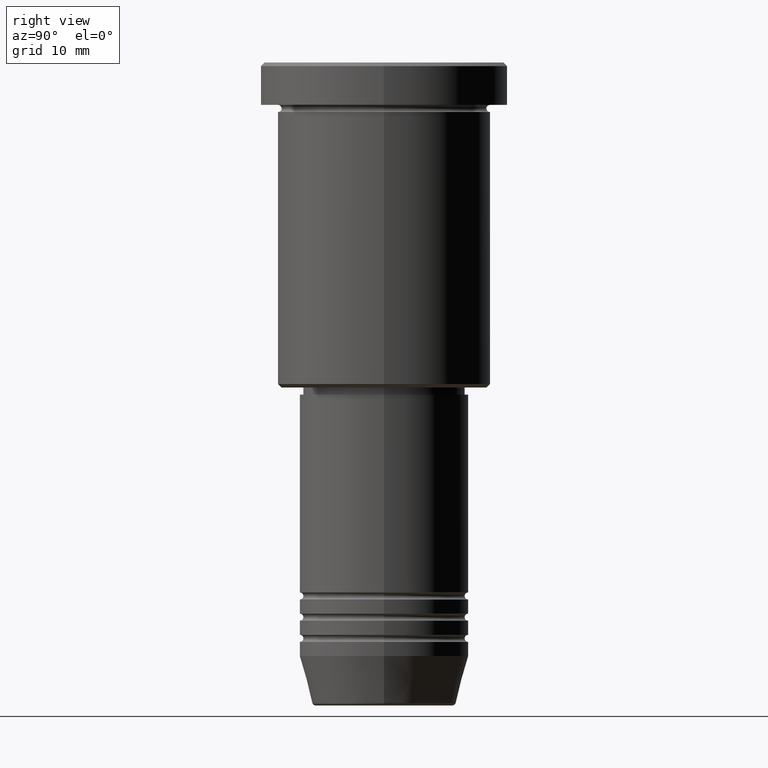
[diagram: clean part render]
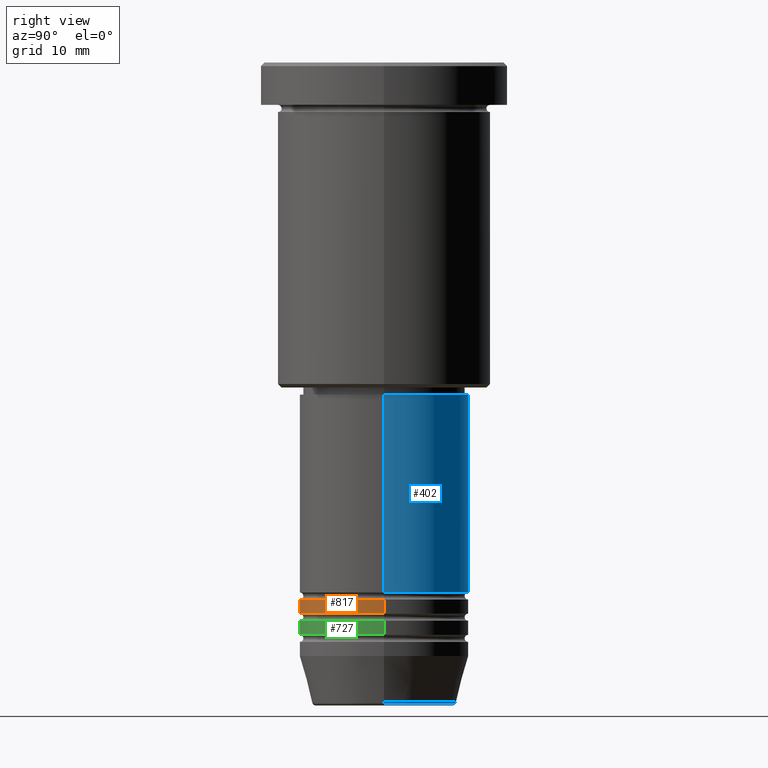
[diagram: same view with three faces highlighted in distinct colors, each labeled with its STEP entity id]
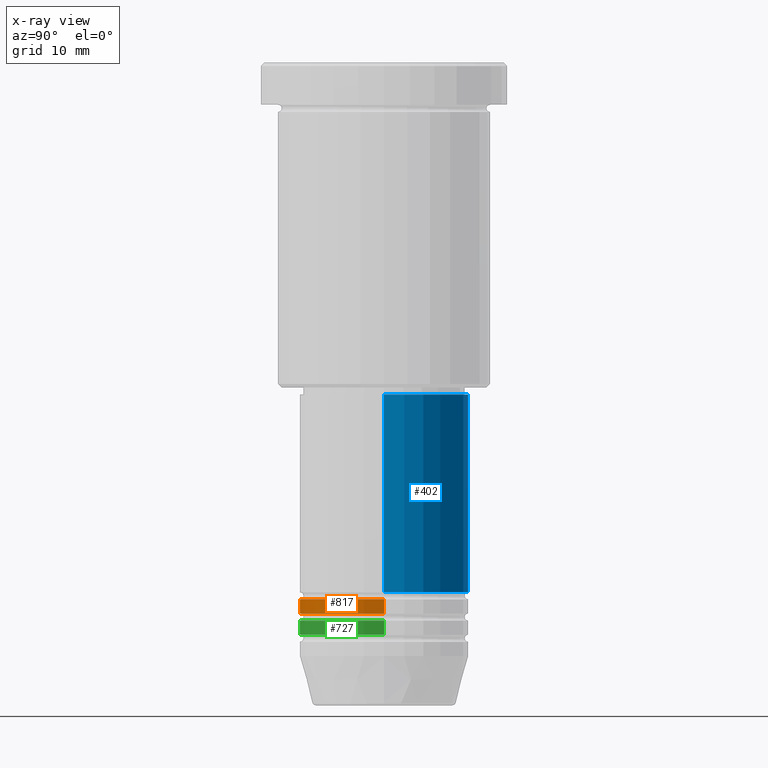
[diagram: x-ray of the same camera — body ghosted, the three highlighted faces saturated]
A machine part, right view with three faces highlighted in distinct colors.
The next image is the same camera in x-ray (body ghosted, the three faces saturated) — at least one of them is partly hidden behind the body in this view.
Their STEP definitions:

[orange] entity #817 — the highlighted cylindrical surface (partial cylindrical patch) has radius 12 mm, axis along (-0, -0, 1).
#17 = DIRECTION ( 'NONE',  ( -0.000000000000000000, -0.000000000000000000, 1.000000000000000000 ) ) ;
#22 = CARTESIAN_POINT ( 'NONE',  ( -12.00000000000000000, 1.469576158976823947E-15, 0.000000000000000000 ) ) ;
#30 = DIRECTION ( 'NONE',  ( 1.000000000000000000, 0.000000000000000000, 0.000000000000000000 ) ) ;
#74 = DIRECTION ( 'NONE',  ( -0.000000000000000000, -0.000000000000000000, 1.000000000000000000 ) ) ;
#132 = AXIS2_PLACEMENT_3D ( 'NONE', #626, #257, #236 ) ;
#173 = CIRCLE ( 'NONE', #1135, 12.00000000000000000 ) ;
#197 = CARTESIAN_POINT ( 'NONE',  ( 12.00000000000000000, 0.000000000000000000, -77.99999999999997158 ) ) ;
#236 = DIRECTION ( 'NONE',  ( 1.000000000000000000, 0.000000000000000000, 0.000000000000000000 ) ) ;
#242 = EDGE_CURVE ( 'NONE', #938, #584, #479, .T. ) ;
#257 = DIRECTION ( 'NONE',  ( -0.000000000000000000, -0.000000000000000000, 1.000000000000000000 ) ) ;
#280 = VECTOR ( 'NONE', #17, 1000.000000000000000 ) ;
#372 = CARTESIAN_POINT ( 'NONE',  ( -12.00000000000000000, 1.469576158976823947E-15, -75.99999999999997158 ) ) ;
#416 = EDGE_CURVE ( 'NONE', #666, #938, #836, .T. ) ;
#445 = DIRECTION ( 'NONE',  ( 1.000000000000000000, 0.000000000000000000, 0.000000000000000000 ) ) ;
#456 = EDGE_CURVE ( 'NONE', #609, #584, #913, .T. ) ;
#479 = CIRCLE ( 'NONE', #637, 12.00000000000000000 ) ;
#522 = EDGE_LOOP ( 'NONE', ( #866, #598, #1174, #855 ) ) ;
#553 = DIRECTION ( 'NONE',  ( -0.000000000000000000, -0.000000000000000000, 1.000000000000000000 ) ) ;
#563 = CARTESIAN_POINT ( 'NONE',  ( 12.00000000000000000, 0.000000000000000000, 0.000000000000000000 ) ) ;
#584 = VERTEX_POINT ( 'NONE', #680 ) ;
#598 = ORIENTED_EDGE ( 'NONE', *, *, #707, .T. ) ;
#609 = VERTEX_POINT ( 'NONE', #197 ) ;
#613 = CYLINDRICAL_SURFACE ( 'NONE', #132, 12.00000000000000000 ) ;
#626 = CARTESIAN_POINT ( 'NONE',  ( 0.000000000000000000, 0.000000000000000000, 0.000000000000000000 ) ) ;
#637 = AXIS2_PLACEMENT_3D ( 'NONE', #1150, #844, #30 ) ;
#666 = VERTEX_POINT ( 'NONE', #929 ) ;
#680 = CARTESIAN_POINT ( 'NONE',  ( 12.00000000000000000, 0.000000000000000000, -75.99999999999997158 ) ) ;
#707 = EDGE_CURVE ( 'NONE', #666, #609, #173, .T. ) ;
#817 = ADVANCED_FACE ( 'NONE', ( #1085 ), #613, .T. ) ;
#836 = LINE ( 'NONE', #22, #280 ) ;
#844 = DIRECTION ( 'NONE',  ( -0.000000000000000000, -0.000000000000000000, 1.000000000000000000 ) ) ;
#855 = ORIENTED_EDGE ( 'NONE', *, *, #242, .F. ) ;
#866 = ORIENTED_EDGE ( 'NONE', *, *, #416, .F. ) ;
#913 = LINE ( 'NONE', #563, #1027 ) ;
#929 = CARTESIAN_POINT ( 'NONE',  ( -12.00000000000000000, 1.469576158976823947E-15, -77.99999999999997158 ) ) ;
#938 = VERTEX_POINT ( 'NONE', #372 ) ;
#1027 = VECTOR ( 'NONE', #553, 1000.000000000000000 ) ;
#1085 = FACE_OUTER_BOUND ( 'NONE', #522, .T. ) ;
#1135 = AXIS2_PLACEMENT_3D ( 'NONE', #1162, #74, #445 ) ;
#1150 = CARTESIAN_POINT ( 'NONE',  ( 0.000000000000000000, 0.000000000000000000, -75.99999999999997158 ) ) ;
#1162 = CARTESIAN_POINT ( 'NONE',  ( 0.000000000000000000, 0.000000000000000000, -77.99999999999997158 ) ) ;
#1174 = ORIENTED_EDGE ( 'NONE', *, *, #456, .T. ) ;

[blue] entity #402 — the highlighted cylindrical surface (partial cylindrical patch) has radius 12 mm, axis along (-0, -0, 1).
#13 = CARTESIAN_POINT ( 'NONE',  ( -12.00000000000000000, 1.469576158976823947E-15, 0.000000000000000000 ) ) ;
#48 = EDGE_CURVE ( 'NONE', #960, #1116, #191, .T. ) ;
#71 = DIRECTION ( 'NONE',  ( -0.000000000000000000, -0.000000000000000000, 1.000000000000000000 ) ) ;
#77 = CIRCLE ( 'NONE', #457, 12.00000000000000000 ) ;
#93 = CARTESIAN_POINT ( 'NONE',  ( 0.000000000000000000, 0.000000000000000000, -74.99999999999997158 ) ) ;
#108 = CARTESIAN_POINT ( 'NONE',  ( 12.00000000000000000, 0.000000000000000000, 0.000000000000000000 ) ) ;
#152 = AXIS2_PLACEMENT_3D ( 'NONE', #882, #71, #340 ) ;
#191 = CIRCLE ( 'NONE', #1015, 12.00000000000000000 ) ;
#195 = DIRECTION ( 'NONE',  ( -0.000000000000000000, -0.000000000000000000, 1.000000000000000000 ) ) ;
#224 = VECTOR ( 'NONE', #195, 1000.000000000000000 ) ;
#275 = DIRECTION ( 'NONE',  ( -0.000000000000000000, -0.000000000000000000, 1.000000000000000000 ) ) ;
#327 = FACE_OUTER_BOUND ( 'NONE', #328, .T. ) ;
#328 = EDGE_LOOP ( 'NONE', ( #617, #355, #1161, #366 ) ) ;
#340 = DIRECTION ( 'NONE',  ( 1.000000000000000000, 0.000000000000000000, 0.000000000000000000 ) ) ;
#343 = VERTEX_POINT ( 'NONE', #349 ) ;
#349 = CARTESIAN_POINT ( 'NONE',  ( -12.00000000000000000, 1.469576158976823947E-15, -74.99999999999997158 ) ) ;
#355 = ORIENTED_EDGE ( 'NONE', *, *, #526, .T. ) ;
#366 = ORIENTED_EDGE ( 'NONE', *, *, #444, .F. ) ;
#402 = ADVANCED_FACE ( 'NONE', ( #327 ), #886, .T. ) ;
#444 = EDGE_CURVE ( 'NONE', #985, #960, #1006, .T. ) ;
#454 = DIRECTION ( 'NONE',  ( -0.000000000000000000, -0.000000000000000000, 1.000000000000000000 ) ) ;
#457 = AXIS2_PLACEMENT_3D ( 'NONE', #93, #454, #463 ) ;
#463 = DIRECTION ( 'NONE',  ( 1.000000000000000000, 0.000000000000000000, 0.000000000000000000 ) ) ;
#464 = CARTESIAN_POINT ( 'NONE',  ( 0.000000000000000000, 0.000000000000000000, -46.99999999999997158 ) ) ;
#511 = EDGE_CURVE ( 'NONE', #985, #343, #77, .T. ) ;
#526 = EDGE_CURVE ( 'NONE', #343, #1116, #1110, .T. ) ;
#617 = ORIENTED_EDGE ( 'NONE', *, *, #511, .T. ) ;
#728 = CARTESIAN_POINT ( 'NONE',  ( 12.00000000000000000, 0.000000000000000000, -46.99999999999997158 ) ) ;
#745 = VECTOR ( 'NONE', #833, 1000.000000000000000 ) ;
#823 = DIRECTION ( 'NONE',  ( 1.000000000000000000, 0.000000000000000000, 0.000000000000000000 ) ) ;
#832 = CARTESIAN_POINT ( 'NONE',  ( 12.00000000000000000, 0.000000000000000000, -74.99999999999997158 ) ) ;
#833 = DIRECTION ( 'NONE',  ( -0.000000000000000000, -0.000000000000000000, 1.000000000000000000 ) ) ;
#882 = CARTESIAN_POINT ( 'NONE',  ( 0.000000000000000000, 0.000000000000000000, 0.000000000000000000 ) ) ;
#886 = CYLINDRICAL_SURFACE ( 'NONE', #152, 12.00000000000000000 ) ;
#960 = VERTEX_POINT ( 'NONE', #728 ) ;
#985 = VERTEX_POINT ( 'NONE', #832 ) ;
#1006 = LINE ( 'NONE', #108, #224 ) ;
#1015 = AXIS2_PLACEMENT_3D ( 'NONE', #464, #275, #823 ) ;
#1023 = CARTESIAN_POINT ( 'NONE',  ( -12.00000000000000000, 1.469576158976823947E-15, -46.99999999999997158 ) ) ;
#1110 = LINE ( 'NONE', #13, #745 ) ;
#1116 = VERTEX_POINT ( 'NONE', #1023 ) ;
#1161 = ORIENTED_EDGE ( 'NONE', *, *, #48, .F. ) ;

[green] entity #727 — the highlighted cylindrical surface (partial cylindrical patch) has radius 12 mm, axis along (-0, -0, 1).
#2 = DIRECTION ( 'NONE',  ( 1.000000000000000000, 0.000000000000000000, 0.000000000000000000 ) ) ;
#9 = VECTOR ( 'NONE', #56, 1000.000000000000000 ) ;
#32 = CARTESIAN_POINT ( 'NONE',  ( -12.00000000000000000, 1.469576158976823947E-15, -80.99999999999997158 ) ) ;
#56 = DIRECTION ( 'NONE',  ( -0.000000000000000000, -0.000000000000000000, 1.000000000000000000 ) ) ;
#58 = VERTEX_POINT ( 'NONE', #922 ) ;
#79 = LINE ( 'NONE', #1070, #9 ) ;
#134 = VECTOR ( 'NONE', #1155, 1000.000000000000000 ) ;
#187 = DIRECTION ( 'NONE',  ( -0.000000000000000000, -0.000000000000000000, 1.000000000000000000 ) ) ;
#266 = CIRCLE ( 'NONE', #931, 12.00000000000000000 ) ;
#326 = CYLINDRICAL_SURFACE ( 'NONE', #1030, 12.00000000000000000 ) ;
#345 = AXIS2_PLACEMENT_3D ( 'NONE', #561, #543, #2 ) ;
#384 = VERTEX_POINT ( 'NONE', #529 ) ;
#413 = FACE_OUTER_BOUND ( 'NONE', #935, .T. ) ;
#529 = CARTESIAN_POINT ( 'NONE',  ( 12.00000000000000000, 0.000000000000000000, -80.99999999999997158 ) ) ;
#543 = DIRECTION ( 'NONE',  ( -0.000000000000000000, -0.000000000000000000, 1.000000000000000000 ) ) ;
#547 = DIRECTION ( 'NONE',  ( 1.000000000000000000, 0.000000000000000000, 0.000000000000000000 ) ) ;
#561 = CARTESIAN_POINT ( 'NONE',  ( 0.000000000000000000, 0.000000000000000000, -80.99999999999997158 ) ) ;
#601 = DIRECTION ( 'NONE',  ( 1.000000000000000000, 0.000000000000000000, 0.000000000000000000 ) ) ;
#639 = CARTESIAN_POINT ( 'NONE',  ( 0.000000000000000000, 0.000000000000000000, -78.99999999999997158 ) ) ;
#689 = CARTESIAN_POINT ( 'NONE',  ( 12.00000000000000000, 0.000000000000000000, 0.000000000000000000 ) ) ;
#700 = EDGE_CURVE ( 'NONE', #1127, #713, #79, .T. ) ;
#713 = VERTEX_POINT ( 'NONE', #873 ) ;
#720 = ORIENTED_EDGE ( 'NONE', *, *, #849, .F. ) ;
#727 = ADVANCED_FACE ( 'NONE', ( #413 ), #326, .T. ) ;
#795 = ORIENTED_EDGE ( 'NONE', *, *, #1176, .T. ) ;
#849 = EDGE_CURVE ( 'NONE', #713, #58, #266, .T. ) ;
#873 = CARTESIAN_POINT ( 'NONE',  ( -12.00000000000000000, 1.469576158976823947E-15, -78.99999999999997158 ) ) ;
#891 = EDGE_CURVE ( 'NONE', #1127, #384, #1156, .T. ) ;
#911 = ORIENTED_EDGE ( 'NONE', *, *, #700, .F. ) ;
#922 = CARTESIAN_POINT ( 'NONE',  ( 12.00000000000000000, 0.000000000000000000, -78.99999999999997158 ) ) ;
#931 = AXIS2_PLACEMENT_3D ( 'NONE', #639, #187, #547 ) ;
#935 = EDGE_LOOP ( 'NONE', ( #911, #1008, #795, #720 ) ) ;
#968 = LINE ( 'NONE', #689, #134 ) ;
#986 = DIRECTION ( 'NONE',  ( -0.000000000000000000, -0.000000000000000000, 1.000000000000000000 ) ) ;
#1008 = ORIENTED_EDGE ( 'NONE', *, *, #891, .T. ) ;
#1030 = AXIS2_PLACEMENT_3D ( 'NONE', #1149, #986, #601 ) ;
#1070 = CARTESIAN_POINT ( 'NONE',  ( -12.00000000000000000, 1.469576158976823947E-15, 0.000000000000000000 ) ) ;
#1127 = VERTEX_POINT ( 'NONE', #32 ) ;
#1149 = CARTESIAN_POINT ( 'NONE',  ( 0.000000000000000000, 0.000000000000000000, 0.000000000000000000 ) ) ;
#1155 = DIRECTION ( 'NONE',  ( -0.000000000000000000, -0.000000000000000000, 1.000000000000000000 ) ) ;
#1156 = CIRCLE ( 'NONE', #345, 12.00000000000000000 ) ;
#1176 = EDGE_CURVE ( 'NONE', #384, #58, #968, .T. ) ;